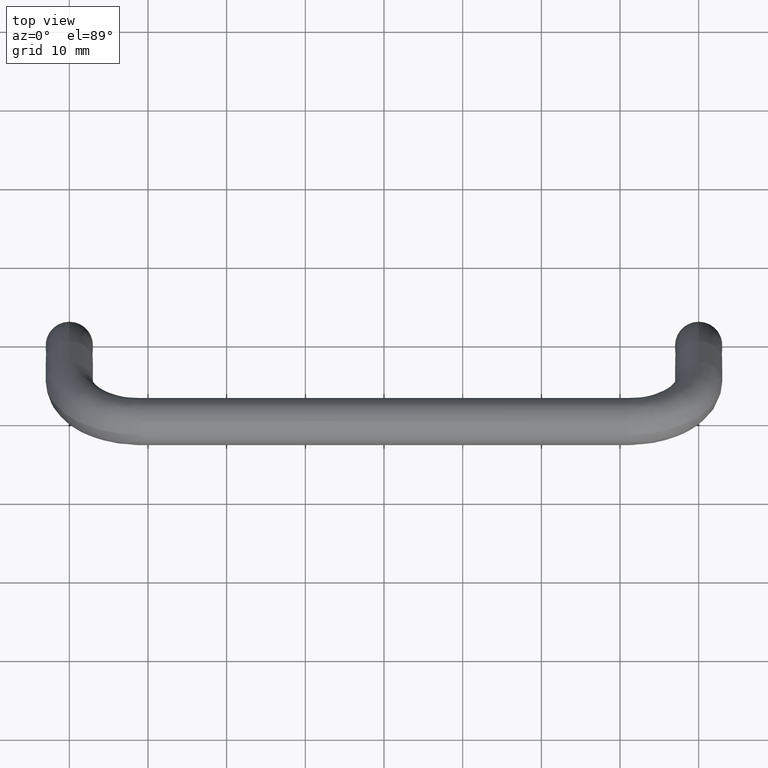
[diagram: clean part render]
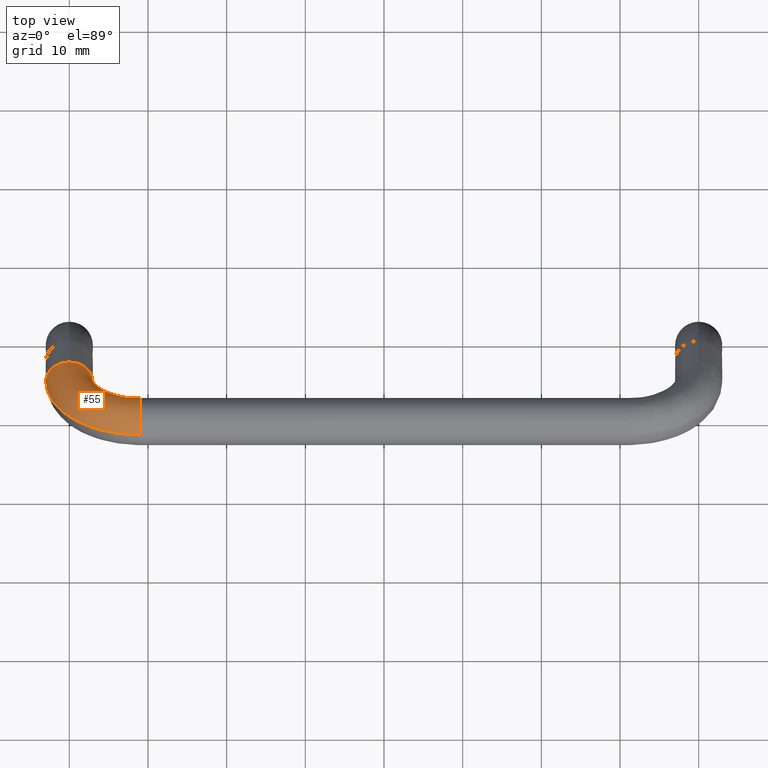
[diagram: same view with one face highlighted and labeled with its STEP entity id]
A machine part, top view. The second image highlights one B-rep face of the part: STEP entity #55.
In plain terms, the highlighted face is a freeform B-spline surface patch.
Its self-contained STEP definition (entity closure, byte-faithful):
#55=ADVANCED_FACE('',(#219),#218,.T.);
#218=( BOUNDED_SURFACE() B_SPLINE_SURFACE( 2,2,((#532,#533,#534,#535,#536),(#537,#538,#539,#540,#541),(#542,#543,#544,#545,#546),(#547,#548,#549,#550,#551),(#552,#553,#554,#555,#556)), .UNSPECIFIED.,.F.,.F.,.F.) B_SPLINE_SURFACE_WITH_KNOTS((3,2,3),(3,2,3),(0.00000000000E+00,1.57079632679E+00,3.14159265359E+00),(3.13988236667E+00,3.14159265359E+00,4.71238898038E+00), .UNSPECIFIED. ) GEOMETRIC_REPRESENTATION_ITEM() RATIONAL_B_SPLINE_SURFACE(((9.99362888724E-01,9.99681097140E-01,1.00000000000E+00,7.07106781187E-01,9.99999999998E-01),(7.06656275483E-01,7.06881282811E-01,7.07106781187E-01,5.00000000001E-01,7.07106781185E-01),(9.99362888724E-01,9.99681097140E-01,1.00000000000E+00,7.07106781187E-01,9.99999999998E-01),(7.06656275483E-01,7.06881282811E-01,7.07106781187E-01,5.00000000001E-01,7.07106781185E-01),(9.99362888724E-01,9.99681097140E-01,1.00000000000E+00,7.07106781187E-01,9.99999999998E-01))) REPRESENTATION_ITEM('') SURFACE() );
#219=FACE_OUTER_BOUND('',#557,.T.);
#532=CARTESIAN_POINT('',(-3.09815165260E+01,-1.74631544943E+00,5.43932304976E+00));
#533=CARTESIAN_POINT('',(-3.09907582576E+01,-1.74632373571E+00,5.43933462437E+00));
#534=CARTESIAN_POINT('',(-3.10000000002E+01,-1.74632373571E+00,5.43933462437E+00));
#535=CARTESIAN_POINT('',(-4.30000000000E+01,-1.74632373573E+00,5.43933462436E+00));
#536=CARTESIAN_POINT('',(-4.30000000001E+01,5.23897120723E+00,-4.31800387325E+00));
#537=CARTESIAN_POINT('',(-3.09815165261E+01,6.93019174994E-01,7.18564678552E+00));
#538=CARTESIAN_POINT('',(-3.09907582576E+01,6.93010888712E-01,7.18565836012E+00));
#539=CARTESIAN_POINT('',(-3.10000000002E+01,6.93010888712E-01,7.18565836012E+00));
#540=CARTESIAN_POINT('',(-4.30000000001E+01,6.93010888698E-01,7.18565836011E+00));
#541=CARTESIAN_POINT('',(-4.30000000001E+01,7.67830583165E+00,-2.57168013749E+00));
#542=CARTESIAN_POINT('',(-3.09861373946E+01,2.43934083918E+00,4.74631505474E+00));
#543=CARTESIAN_POINT('',(-3.09930686933E+01,2.43933462447E+00,4.74632373570E+00));
#544=CARTESIAN_POINT('',(-3.10000000002E+01,2.43933462447E+00,4.74632373570E+00));
#545=CARTESIAN_POINT('',(-4.00000000001E+01,2.43933462446E+00,4.74632373569E+00));
#546=CARTESIAN_POINT('',(-4.00000000001E+01,7.67830583166E+00,-2.57168013750E+00));
#547=CARTESIAN_POINT('',(-3.09907582631E+01,4.18566250337E+00,2.30698332397E+00));
#548=CARTESIAN_POINT('',(-3.09953791289E+01,4.18565836022E+00,2.30698911127E+00));
#549=CARTESIAN_POINT('',(-3.10000000002E+01,4.18565836022E+00,2.30698911127E+00));
#550=CARTESIAN_POINT('',(-3.70000000001E+01,4.18565836022E+00,2.30698911127E+00));
#551=CARTESIAN_POINT('',(-3.70000000001E+01,7.67830583168E+00,-2.57168013751E+00));
#552=CARTESIAN_POINT('',(-3.09907582631E+01,1.74632787894E+00,5.60659588210E-01));
#553=CARTESIAN_POINT('',(-3.09953791289E+01,1.74632373580E+00,5.60665375515E-01));
#554=CARTESIAN_POINT('',(-3.10000000002E+01,1.74632373580E+00,5.60665375515E-01));
#555=CARTESIAN_POINT('',(-3.70000000001E+01,1.74632373579E+00,5.60665375510E-01));
#556=CARTESIAN_POINT('',(-3.70000000001E+01,5.23897120725E+00,-4.31800387327E+00));
#557=EDGE_LOOP('',(#676,#677,#678,#679,#680,#681));
#676=ORIENTED_EDGE('',*,*,#783,.F.);
#677=ORIENTED_EDGE('',*,*,#784,.F.);
#678=ORIENTED_EDGE('',*,*,#779,.T.);
#679=ORIENTED_EDGE('',*,*,#785,.T.);
#680=ORIENTED_EDGE('',*,*,#786,.T.);
#681=ORIENTED_EDGE('',*,*,#782,.F.);
#779=EDGE_CURVE('',#1103,#1096,#1104,.T.);
#782=EDGE_CURVE('',#1117,#1081,#1124,.T.);
#783=EDGE_CURVE('',#1130,#1117,#1131,.T.);
#784=EDGE_CURVE('',#1103,#1130,#1137,.T.);
#785=EDGE_CURVE('',#1096,#1143,#1144,.T.);
#786=EDGE_CURVE('',#1143,#1081,#1150,.T.);
#1081=VERTEX_POINT('',#1404);
#1096=VERTEX_POINT('',#1415);
#1103=VERTEX_POINT('',#1420);
#1104=(BOUNDED_CURVE() B_SPLINE_CURVE(2,(#1421,#1422,#1423),.UNSPECIFIED.,.F.,.F.) B_SPLINE_CURVE_WITH_KNOTS((3,3),(3.14159265359E+00,4.71238898038E+00),.UNSPECIFIED.) CURVE() GEOMETRIC_REPRESENTATION_ITEM() RATIONAL_B_SPLINE_CURVE((1.00000000000E+00,7.07106781187E-01,1.00000000000E+00)) REPRESENTATION_ITEM('') );
#1117=VERTEX_POINT('',#1429);
#1124=(BOUNDED_CURVE() B_SPLINE_CURVE(3,(#1434,#1435,#1436,#1437,#1438),.UNSPECIFIED.,.F.,.F.) B_SPLINE_CURVE_WITH_KNOTS((4,1,4),(3.14159265359E+00,3.92699081698E+00,4.71238898037E+00),.UNSPECIFIED.) CURVE() GEOMETRIC_REPRESENTATION_ITEM() RATIONAL_B_SPLINE_CURVE((1.00000000000E+00,1.00000000000E+00,1.00000000000E+00,1.00000000000E+00,1.00000000000E+00)) REPRESENTATION_ITEM('') );
#1130=VERTEX_POINT('',#1439);
#1131=CIRCLE('',#1443,3.00000000000E+00);
#1137=CIRCLE('',#1447,3.00000000000E+00);
#1143=VERTEX_POINT('',#1448);
#1144=CIRCLE('',#1452,3.00000000000E+00);
#1150=CIRCLE('',#1456,3.00000000000E+00);
#1404=CARTESIAN_POINT('',(-4.30000000001E+01,5.23897118423E+00,-4.31800388978E+00));
#1415=CARTESIAN_POINT('',(-3.70000000001E+01,5.23897120726E+00,-4.31800387329E+00));
#1420=CARTESIAN_POINT('',(-3.10000000001E+01,1.74632373899E+00,5.60665377888E-01));
#1421=CARTESIAN_POINT('',(-3.10000000002E+01,1.74632373580E+00,5.60665375515E-01));
#1422=CARTESIAN_POINT('',(-3.70000000001E+01,1.74632373579E+00,5.60665375510E-01));
#1423=CARTESIAN_POINT('',(-3.70000000001E+01,5.23897120726E+00,-4.31800387329E+00));
#1429=CARTESIAN_POINT('',(-3.10000000001E+01,-1.74632373899E+00,5.43933462211E+00));
#1434=CARTESIAN_POINT('',(-3.10000000001E+01,-1.74632373571E+00,5.43933462437E+00));
#1435=CARTESIAN_POINT('',(-3.41067496972E+01,-1.76091083867E+00,5.45971047139E+00));
#1436=CARTESIAN_POINT('',(-4.04046583477E+01,-2.35554825842E-01,3.32903237288E+00));
#1437=CARTESIAN_POINT('',(-4.30250591045E+01,3.43050762811E+00,-1.79186983795E+00));
#1438=CARTESIAN_POINT('',(-4.30000000001E+01,5.23897120715E+00,-4.31800387315E+00));
#1439=CARTESIAN_POINT('',(-3.10000000001E+01,1.50948537406E-04,5.99999999620E+00));
#1440=CARTESIAN_POINT('',(-3.10000000001E+01,5.20417042793E-14,3.00000000000E+00));
#1441=DIRECTION('',(1.00000000000E+00,2.01959252071E-15,-2.36847578587E-15));
#1442=DIRECTION('',(3.10145578270E-15,-5.82107912997E-01,8.13111540704E-01));
#1443=AXIS2_PLACEMENT_3D('',#1440,#1441,#1442);
#1444=CARTESIAN_POINT('',(-3.10000000001E+01,5.20417042793E-14,3.00000000000E+00));
#1445=DIRECTION('',(1.00000000000E+00,2.01959252071E-15,-2.36847578587E-15));
#1446=DIRECTION('',(3.10145578270E-15,-5.82107912997E-01,8.13111540704E-01));
#1447=AXIS2_PLACEMENT_3D('',#1444,#1445,#1446);
#1448=CARTESIAN_POINT('',(-4.15000272361E+01,7.35148417424E+00,-2.80565230850E+00));
#1449=CARTESIAN_POINT('',(-4.00000000001E+01,5.23897120726E+00,-4.31800387329E+00));
#1450=DIRECTION('',(4.14162847609E-17,-5.82107911917E-01,8.13111541477E-01));
#1451=DIRECTION('',(3.28266668803E-07,-8.13111541477E-01,-5.82107911917E-01));
#1452=AXIS2_PLACEMENT_3D('',#1449,#1450,#1451);
#1453=CARTESIAN_POINT('',(-4.00000000001E+01,5.23897120726E+00,-4.31800387329E+00));
#1454=DIRECTION('',(4.14162847609E-17,-5.82107911917E-01,8.13111541477E-01));
#1455=DIRECTION('',(3.28266668803E-07,-8.13111541477E-01,-5.82107911917E-01));
#1456=AXIS2_PLACEMENT_3D('',#1453,#1454,#1455);